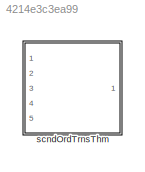
MODEL slx_4214e3c3ea99
KIND library
CONFIG AbsTol = auto
CONFIG EnableMultiTasking = off
CONFIG FixedStep = auto
CONFIG MaxStep = auto
CONFIG MinStep = auto
CONFIG RelTol = 1e-3
CONFIG SampleTimeConstraint = Unconstrained
CONFIG SolverName = VariableStepAuto
CONFIG StartTime = 0.0
CONFIG StopTime = 10.0
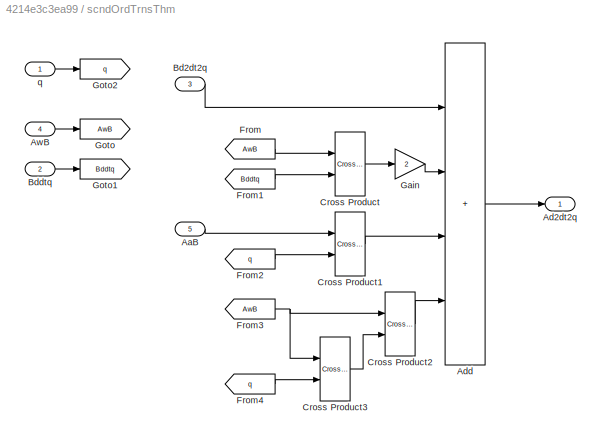
BLOCK [SubSystem] scndOrdTrnsThm
  Ports = [5, 1]
  RequestExecContextInheritance = off
BLOCK [Inport] scndOrdTrnsThm/AaB
  Port = 5
  PortDimensions = 3
BLOCK [Outport] scndOrdTrnsThm/Ad2dt2q
  VectorParamsAs1DForOutWhenUnconnected = off
BLOCK [Sum] scndOrdTrnsThm/Add
  IconShape = rectangular
  Inputs = ++++
  Ports = [4, 1]
BLOCK [Inport] scndOrdTrnsThm/AwB
  Port = 4
  PortDimensions = 3
BLOCK [Inport] scndOrdTrnsThm/Bd2dt2q
  Port = 3
  PortDimensions = 3
BLOCK [Inport] scndOrdTrnsThm/Bddtq
  Port = 2
  PortDimensions = 3
BLOCK [Reference] scndOrdTrnsThm/Cross Product  REF=vrlib/Utilities/Cross Product
  Ports = [2, 1]
  SourceBlock = vrlib/Utilities/Cross Product
  SourceProductBaseCode = SL
  SourceType = Cross Product
BLOCK [Reference] scndOrdTrnsThm/Cross Product1  REF=vrlib/Utilities/Cross Product
  Ports = [2, 1]
  SourceBlock = vrlib/Utilities/Cross Product
  SourceProductBaseCode = SL
  SourceType = Cross Product
BLOCK [Reference] scndOrdTrnsThm/Cross Product2  REF=vrlib/Utilities/Cross Product
  Ports = [2, 1]
  SourceBlock = vrlib/Utilities/Cross Product
  SourceProductBaseCode = SL
  SourceType = Cross Product
BLOCK [Reference] scndOrdTrnsThm/Cross Product3  REF=vrlib/Utilities/Cross Product
  Ports = [2, 1]
  SourceBlock = vrlib/Utilities/Cross Product
  SourceProductBaseCode = SL
  SourceType = Cross Product
BLOCK [From] scndOrdTrnsThm/From
  GotoTag = AwB
BLOCK [From] scndOrdTrnsThm/From1
  GotoTag = Bddtq
BLOCK [From] scndOrdTrnsThm/From2
  GotoTag = q
BLOCK [From] scndOrdTrnsThm/From3
  GotoTag = AwB
BLOCK [From] scndOrdTrnsThm/From4
  GotoTag = q
BLOCK [Gain] scndOrdTrnsThm/Gain
  Gain = 2
BLOCK [Goto] scndOrdTrnsThm/Goto
  GotoTag = AwB
BLOCK [Goto] scndOrdTrnsThm/Goto1
  GotoTag = Bddtq
BLOCK [Goto] scndOrdTrnsThm/Goto2
  GotoTag = q
BLOCK [Inport] scndOrdTrnsThm/q
  PortDimensions = 3
LINE scndOrdTrnsThm/AaB:1 -> scndOrdTrnsThm/Cross Product1:1
LINE scndOrdTrnsThm/Add:1 -> scndOrdTrnsThm/Ad2dt2q:1
LINE scndOrdTrnsThm/AwB:1 -> scndOrdTrnsThm/Goto:1
LINE scndOrdTrnsThm/Bd2dt2q:1 -> scndOrdTrnsThm/Add:1
LINE scndOrdTrnsThm/Bddtq:1 -> scndOrdTrnsThm/Goto1:1
LINE scndOrdTrnsThm/Cross Product1:1 -> scndOrdTrnsThm/Add:3
LINE scndOrdTrnsThm/Cross Product2:1 -> scndOrdTrnsThm/Add:4
LINE scndOrdTrnsThm/Cross Product3:1 -> scndOrdTrnsThm/Cross Product2:2
LINE scndOrdTrnsThm/Cross Product:1 -> scndOrdTrnsThm/Gain:1
LINE scndOrdTrnsThm/From1:1 -> scndOrdTrnsThm/Cross Product:2
LINE scndOrdTrnsThm/From2:1 -> scndOrdTrnsThm/Cross Product1:2
NET scndOrdTrnsThm/From3:1 -> scndOrdTrnsThm/Cross Product2:1, scndOrdTrnsThm/Cross Product3:1
LINE scndOrdTrnsThm/From4:1 -> scndOrdTrnsThm/Cross Product3:2
LINE scndOrdTrnsThm/From:1 -> scndOrdTrnsThm/Cross Product:1
LINE scndOrdTrnsThm/Gain:1 -> scndOrdTrnsThm/Add:2
LINE scndOrdTrnsThm/q:1 -> scndOrdTrnsThm/Goto2:1
note: NET lines group one-source signal fan-out (src -> all destinations, sorted); 1:1 wires keep LINE
